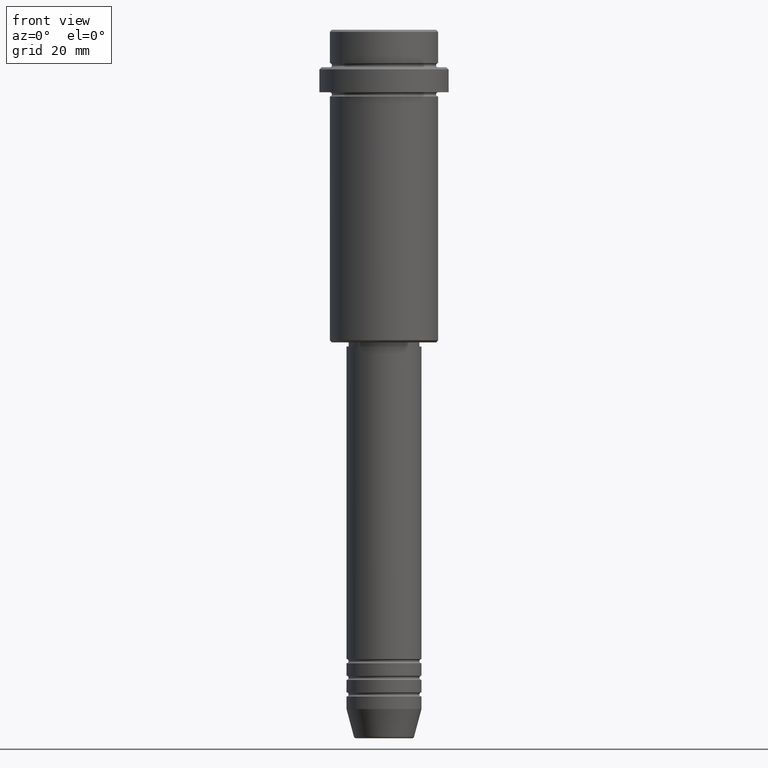
[diagram: clean part render]
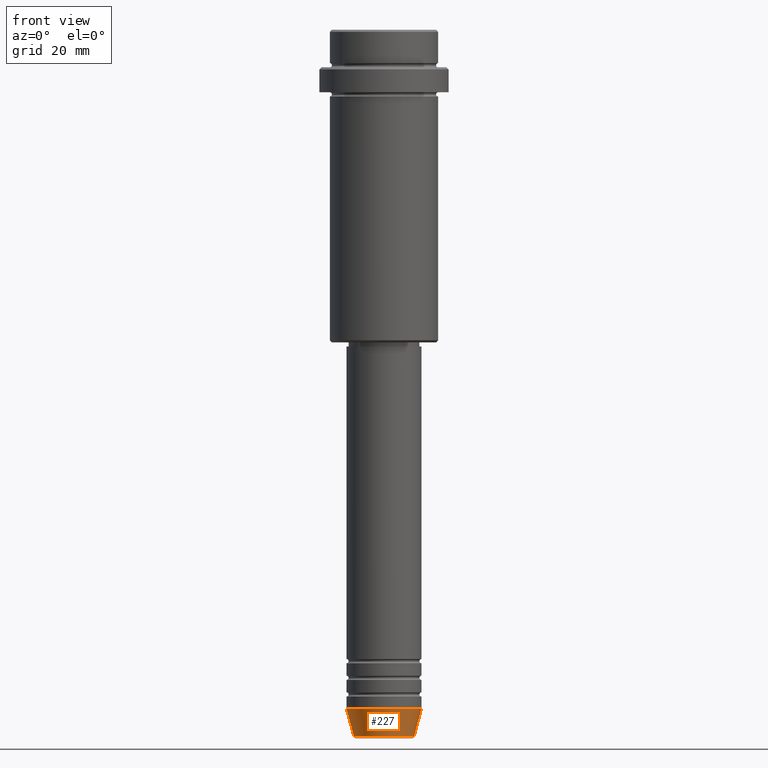
[diagram: same view with one face highlighted and labeled with its STEP entity id]
A machine part, front view. The second image highlights one B-rep face of the part: STEP entity #227.
In plain terms, the highlighted conical surface has half-angle 15 deg.
Its self-contained STEP definition (entity closure, byte-faithful):
#16 = CARTESIAN_POINT ( 'NONE',  ( 0.000000000000000000, 0.000000000000000000, -163.0000000000000000 ) ) ;
#139 = VECTOR ( 'NONE', #1204, 1000.000000000000000 ) ;
#146 = ORIENTED_EDGE ( 'NONE', *, *, #1276, .T. ) ;
#147 = DIRECTION ( 'NONE',  ( 1.000000000000000000, 0.000000000000000000, 0.000000000000000000 ) ) ;
#149 = VERTEX_POINT ( 'NONE', #609 ) ;
#204 = ORIENTED_EDGE ( 'NONE', *, *, #362, .F. ) ;
#227 = ADVANCED_FACE ( 'NONE', ( #1305 ), #684, .T. ) ;
#238 = AXIS2_PLACEMENT_3D ( 'NONE', #927, #906, #147 ) ;
#264 = CARTESIAN_POINT ( 'NONE',  ( 0.000000000000000000, 0.000000000000000000, -169.6294095225512990 ) ) ;
#300 = ORIENTED_EDGE ( 'NONE', *, *, #698, .T. ) ;
#302 = ORIENTED_EDGE ( 'NONE', *, *, #981, .F. ) ;
#362 = EDGE_CURVE ( 'NONE', #1041, #149, #1106, .T. ) ;
#386 = DIRECTION ( 'NONE',  ( -0.2588190451025213501, 3.169619151431772337E-17, 0.9659258262890680902 ) ) ;
#404 = CARTESIAN_POINT ( 'NONE',  ( 7.223655072137188604, 0.000000000000000000, -169.6294095225512990 ) ) ;
#421 = CIRCLE ( 'NONE', #1222, 7.223655072137188604 ) ;
#451 = VERTEX_POINT ( 'NONE', #710 ) ;
#453 = DIRECTION ( 'NONE',  ( 1.000000000000000000, 0.000000000000000000, 0.000000000000000000 ) ) ;
#567 = DIRECTION ( 'NONE',  ( 1.000000000000000000, 0.000000000000000000, 0.000000000000000000 ) ) ;
#609 = CARTESIAN_POINT ( 'NONE',  ( 9.000000000000000000, 0.000000000000000000, -163.0000000000000000 ) ) ;
#676 = EDGE_LOOP ( 'NONE', ( #302, #146, #300, #204 ) ) ;
#684 = CONICAL_SURFACE ( 'NONE', #1287, 9.000000000000000000, 0.2617993877991500740 ) ;
#698 = EDGE_CURVE ( 'NONE', #926, #149, #1000, .T. ) ;
#710 = CARTESIAN_POINT ( 'NONE',  ( -7.223655072137189492, 9.934123627281765110E-16, -169.6294095225512990 ) ) ;
#758 = CARTESIAN_POINT ( 'NONE',  ( 9.000000000000000000, 0.000000000000000000, -163.0000000000000000 ) ) ;
#797 = DIRECTION ( 'NONE',  ( -0.000000000000000000, -0.000000000000000000, 1.000000000000000000 ) ) ;
#906 = DIRECTION ( 'NONE',  ( -0.000000000000000000, -0.000000000000000000, 1.000000000000000000 ) ) ;
#926 = VERTEX_POINT ( 'NONE', #404 ) ;
#927 = CARTESIAN_POINT ( 'NONE',  ( 0.000000000000000000, 0.000000000000000000, -163.0000000000000000 ) ) ;
#981 = EDGE_CURVE ( 'NONE', #451, #1041, #1280, .T. ) ;
#1000 = LINE ( 'NONE', #758, #139 ) ;
#1041 = VERTEX_POINT ( 'NONE', #1047 ) ;
#1047 = CARTESIAN_POINT ( 'NONE',  ( -9.000000000000000000, 1.102182119232617714E-15, -163.0000000000000000 ) ) ;
#1092 = DIRECTION ( 'NONE',  ( -0.000000000000000000, -0.000000000000000000, 1.000000000000000000 ) ) ;
#1106 = CIRCLE ( 'NONE', #238, 9.000000000000000000 ) ;
#1204 = DIRECTION ( 'NONE',  ( 0.2588190451025213501, 0.000000000000000000, 0.9659258262890680902 ) ) ;
#1222 = AXIS2_PLACEMENT_3D ( 'NONE', #264, #797, #567 ) ;
#1276 = EDGE_CURVE ( 'NONE', #451, #926, #421, .T. ) ;
#1280 = LINE ( 'NONE', #1367, #1291 ) ;
#1287 = AXIS2_PLACEMENT_3D ( 'NONE', #16, #1092, #453 ) ;
#1291 = VECTOR ( 'NONE', #386, 1000.000000000000000 ) ;
#1305 = FACE_OUTER_BOUND ( 'NONE', #676, .T. ) ;
#1367 = CARTESIAN_POINT ( 'NONE',  ( -9.000000000000000000, 1.102182119232617714E-15, -163.0000000000000000 ) ) ;